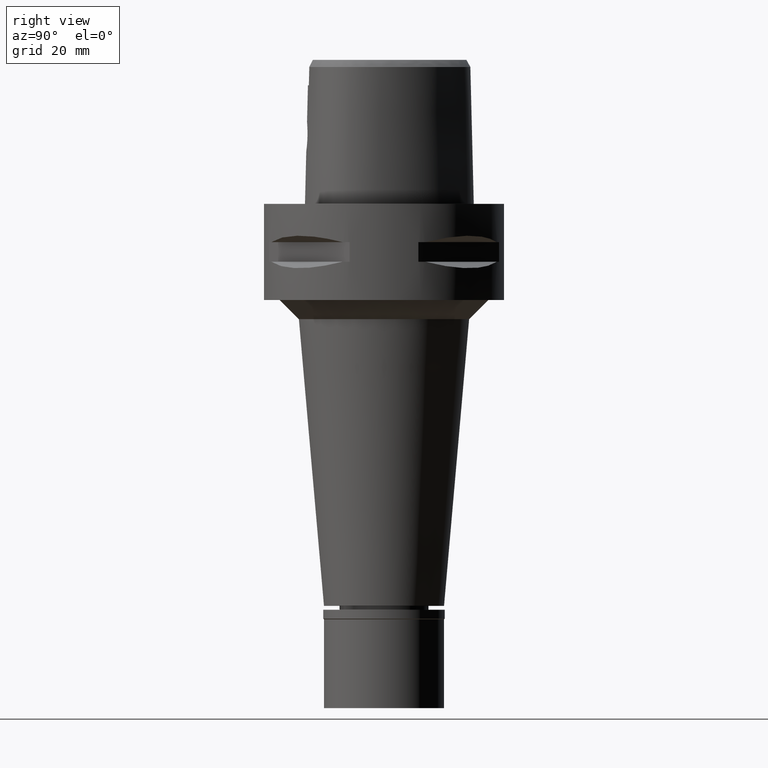
[diagram: clean part render]
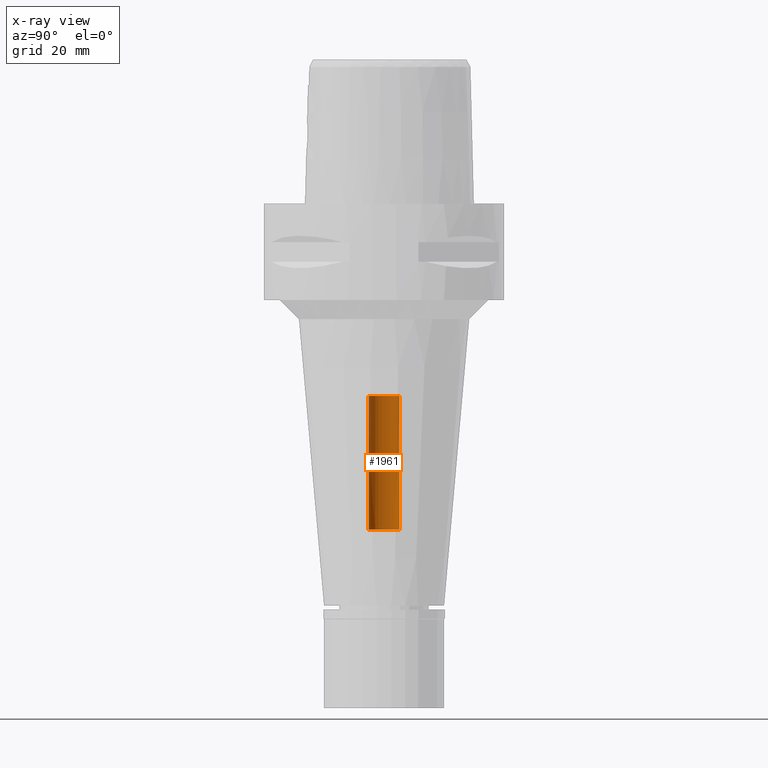
[diagram: x-ray — body ghosted, one internal face saturated and labeled with its STEP entity id]
A machine part, right view, then the same camera in x-ray: the body is ghosted and one INTERNAL B-rep face — a face not visible from any outside direction — is saturated and labeled: STEP entity #1961.
In plain terms, the highlighted cylindrical surface (edge-blend (fillet) strip) has radius 3.2 mm, axis along (0, 0, -1).
Its self-contained STEP definition (entity closure, byte-faithful):
#42 = DIRECTION ( 'NONE',  ( 0.0000000000000000000, 0.0000000000000000000, 1.000000000000000000 ) ) ;
#149 = CARTESIAN_POINT ( 'NONE',  ( 0.0000000000000000000, 1.285144351024999849E-14, -67.79999999999999716 ) ) ;
#346 = CYLINDRICAL_SURFACE ( 'NONE', #2922, 3.200000000000000178 ) ;
#715 = CARTESIAN_POINT ( 'NONE',  ( 0.0000000000000000000, 1.285144351024999849E-14, -40.00000000000000000 ) ) ;
#724 = CARTESIAN_POINT ( 'NONE',  ( 0.0000000000000000000, 3.200000000000000178, -67.79999999999999716 ) ) ;
#1116 = FACE_OUTER_BOUND ( 'NONE', #1122, .T. ) ;
#1122 = EDGE_LOOP ( 'NONE', ( #1147, #2481, #2896, #3292 ) ) ;
#1147 = ORIENTED_EDGE ( 'NONE', *, *, #1997, .T. ) ;
#1231 = DIRECTION ( 'NONE',  ( 0.0000000000000000000, -1.000000000000000000, 0.0000000000000000000 ) ) ;
#1339 = CARTESIAN_POINT ( 'NONE',  ( 0.0000000000000000000, -3.200000000000000178, -40.00000000000000000 ) ) ;
#1448 = LINE ( 'NONE', #3686, #4801 ) ;
#1480 = CIRCLE ( 'NONE', #2369, 3.200000000000000178 ) ;
#1491 = DIRECTION ( 'NONE',  ( 0.0000000000000000000, -1.000000000000000000, 0.0000000000000000000 ) ) ;
#1956 = AXIS2_PLACEMENT_3D ( 'NONE', #715, #4172, #3389 ) ;
#1961 = ADVANCED_FACE ( 'NONE', ( #1116 ), #346, .F. ) ;
#1997 = EDGE_CURVE ( 'NONE', #2155, #4811, #4110, .T. ) ;
#2093 = VECTOR ( 'NONE', #42, 1000.000000000000000 ) ;
#2155 = VERTEX_POINT ( 'NONE', #2577 ) ;
#2369 = AXIS2_PLACEMENT_3D ( 'NONE', #149, #2418, #1231 ) ;
#2418 = DIRECTION ( 'NONE',  ( 0.0000000000000000000, 0.0000000000000000000, -1.000000000000000000 ) ) ;
#2481 = ORIENTED_EDGE ( 'NONE', *, *, #4312, .F. ) ;
#2520 = EDGE_CURVE ( 'NONE', #4025, #2977, #1480, .T. ) ;
#2577 = CARTESIAN_POINT ( 'NONE',  ( 0.0000000000000000000, 3.200000000000000178, -40.00000000000000000 ) ) ;
#2657 = DIRECTION ( 'NONE',  ( 0.0000000000000000000, 0.0000000000000000000, 1.000000000000000000 ) ) ;
#2896 = ORIENTED_EDGE ( 'NONE', *, *, #2520, .T. ) ;
#2922 = AXIS2_PLACEMENT_3D ( 'NONE', #4591, #4894, #1491 ) ;
#2977 = VERTEX_POINT ( 'NONE', #724 ) ;
#3117 = CARTESIAN_POINT ( 'NONE',  ( 0.0000000000000000000, -3.200000000000000178, -67.79999999999999716 ) ) ;
#3292 = ORIENTED_EDGE ( 'NONE', *, *, #4787, .T. ) ;
#3389 = DIRECTION ( 'NONE',  ( 0.0000000000000000000, 1.000000000000000000, 0.0000000000000000000 ) ) ;
#3686 = CARTESIAN_POINT ( 'NONE',  ( 0.0000000000000000000, 3.200000000000000178, -67.79999999999999716 ) ) ;
#3969 = CARTESIAN_POINT ( 'NONE',  ( 0.0000000000000000000, -3.200000000000000178, -67.79999999999999716 ) ) ;
#4025 = VERTEX_POINT ( 'NONE', #3969 ) ;
#4110 = CIRCLE ( 'NONE', #1956, 3.200000000000000178 ) ;
#4172 = DIRECTION ( 'NONE',  ( 0.0000000000000000000, 0.0000000000000000000, 1.000000000000000000 ) ) ;
#4312 = EDGE_CURVE ( 'NONE', #4025, #4811, #4572, .T. ) ;
#4572 = LINE ( 'NONE', #3117, #2093 ) ;
#4591 = CARTESIAN_POINT ( 'NONE',  ( 0.0000000000000000000, 1.285144351024999849E-14, 4.939999999999999503 ) ) ;
#4787 = EDGE_CURVE ( 'NONE', #2977, #2155, #1448, .T. ) ;
#4801 = VECTOR ( 'NONE', #2657, 1000.000000000000000 ) ;
#4811 = VERTEX_POINT ( 'NONE', #1339 ) ;
#4894 = DIRECTION ( 'NONE',  ( 0.0000000000000000000, 0.0000000000000000000, -1.000000000000000000 ) ) ;